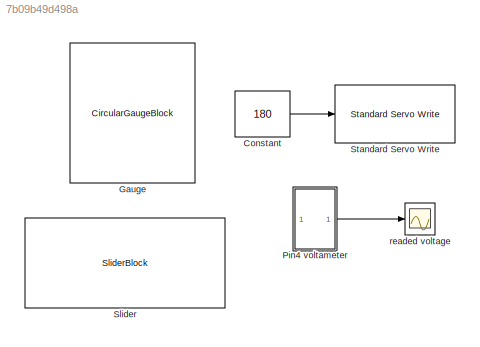
MODEL slx_7b09b49d498a
KIND model
CONFIG AbsTol = auto
CONFIG EnableMultiTasking = off
CONFIG FixedStep = auto
CONFIG MaxStep = auto
CONFIG MinStep = auto
CONFIG RelTol = 1e-3
CONFIG SampleTimeConstraint = Unconstrained
CONFIG SolverName = FixedStepAuto
CONFIG StartTime = 0.0
CONFIG StopTime = inf
BLOCK [Constant] Constant
  Value = 180
BLOCK [CircularGaugeBlock] Gauge
  ScaleMax = 180
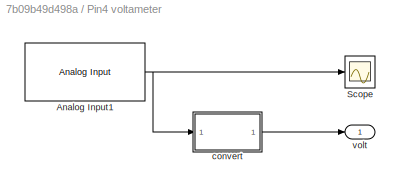
BLOCK [SubSystem] Pin4 voltameter
BLOCK [Reference] Pin4 voltameter/Analog Input1  REF=arduinolib/Analog Input
  SourceBlock = arduinolib/Analog Input
  SourceType = Arduino Analog Input
BLOCK [Scope] Pin4 voltameter/Scope
  Floating = off
  NumInputPorts = 1
  ScopeSpecificationString = Simulink.scopes.TimeScopeBlockCfg('CurrentConfiguration', extmgr.ConfigurationSet(extmgr.Configuration('Core','General UI',true),extmgr.Configuration('Core','Source UI',true),extmgr.Configuration('Sources','WiredSimulink',true),extmgr.Configuration('Visuals','Time Domain',true,'SerializedDisplays',{struct('MinYLimReal','-1.00000','MaxYLimReal','1.00000','YLabelReal','','MinYLimMag','0.00000','MaxY...<+1722ch>
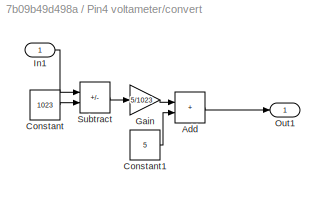
BLOCK [SubSystem] Pin4 voltameter/convert
BLOCK [Sum] Pin4 voltameter/convert/Add
  IconShape = rectangular
BLOCK [Constant] Pin4 voltameter/convert/Constant
  Value = 1023
BLOCK [Constant] Pin4 voltameter/convert/Constant1
  Value = 5
BLOCK [Gain] Pin4 voltameter/convert/Gain
  Gain = 5/1023
BLOCK [Inport] Pin4 voltameter/convert/In1
BLOCK [Outport] Pin4 voltameter/convert/Out1
BLOCK [Sum] Pin4 voltameter/convert/Subtract
  IconShape = rectangular
  Inputs = +-
BLOCK [Outport] Pin4 voltameter/volt 
BLOCK [SliderBlock] Slider
  ScaleMax = 180
BLOCK [Reference] Standard Servo Write  REF=arduinolib/Standard Servo Write
  SourceBlock = arduinolib/Standard Servo Write
  SourceType = Arduino Standard Servo Write
BLOCK [Scope] readed voltage
  Floating = off
  NumInputPorts = 1
  ScopeSpecificationString = Simulink.scopes.TimeScopeBlockCfg('CurrentConfiguration', extmgr.ConfigurationSet(extmgr.Configuration('Core','General UI',true),extmgr.Configuration('Core','Source UI',true),extmgr.Configuration('Sources','WiredSimulink',true,'DataLoggingVariableName','ScopeData1'),extmgr.Configuration('Visuals','Time Domain',true,'SerializedDisplays',{struct('MinYLimReal','-1.00000','MaxYLimReal','1.00000','YLab...<+1724ch>
LINE Constant:1 -> Standard Servo Write:1
NET Pin4 voltameter/Analog Input1:1 -> Pin4 voltameter/Scope:1, Pin4 voltameter/convert:1
LINE Pin4 voltameter/convert/Add:1 -> Pin4 voltameter/convert/Out1:1
LINE Pin4 voltameter/convert/Constant1:1 -> Pin4 voltameter/convert/Add:2
LINE Pin4 voltameter/convert/Constant:1 -> Pin4 voltameter/convert/Subtract:2
LINE Pin4 voltameter/convert/Gain:1 -> Pin4 voltameter/convert/Add:1
LINE Pin4 voltameter/convert/In1:1 -> Pin4 voltameter/convert/Subtract:1
LINE Pin4 voltameter/convert/Subtract:1 -> Pin4 voltameter/convert/Gain:1
LINE Pin4 voltameter/convert:1 -> Pin4 voltameter/volt :1
LINE Pin4 voltameter:1 -> readed voltage:1
note: NET lines group one-source signal fan-out (src -> all destinations, sorted); 1:1 wires keep LINE
